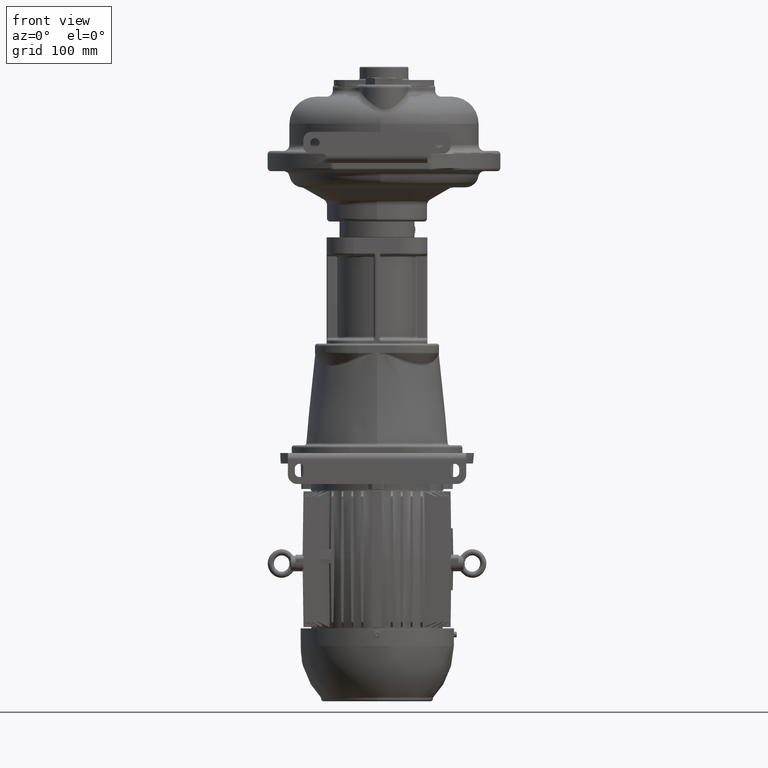
[diagram: clean part render]
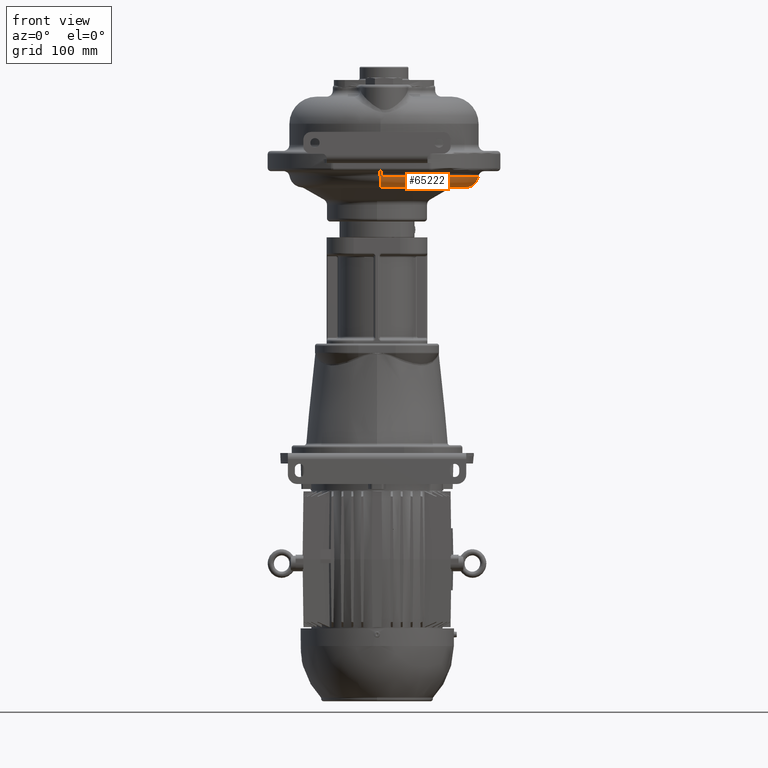
[diagram: same view with one face highlighted and labeled with its STEP entity id]
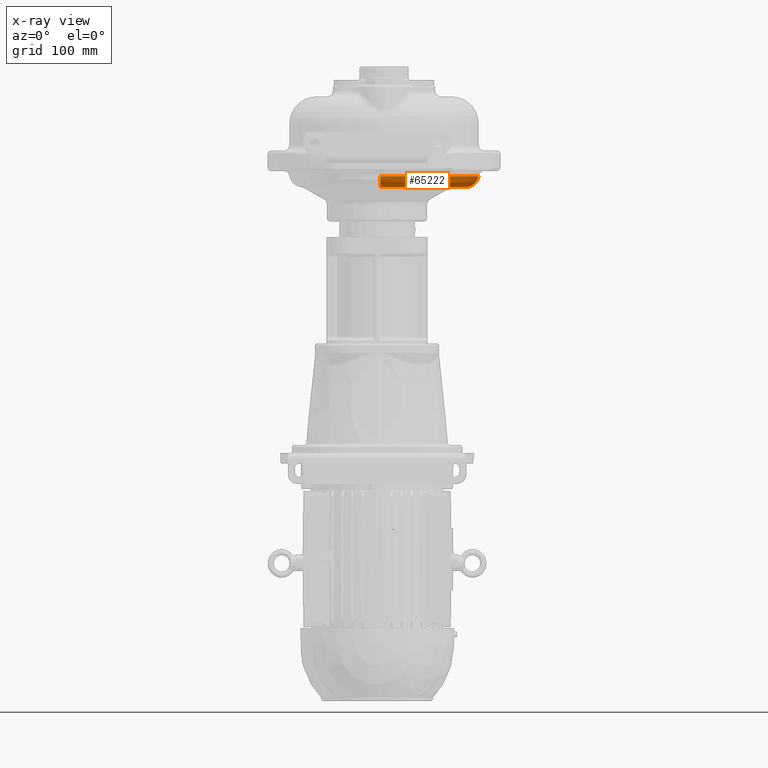
[diagram: x-ray of the same camera — body ghosted, the highlighted face saturated]
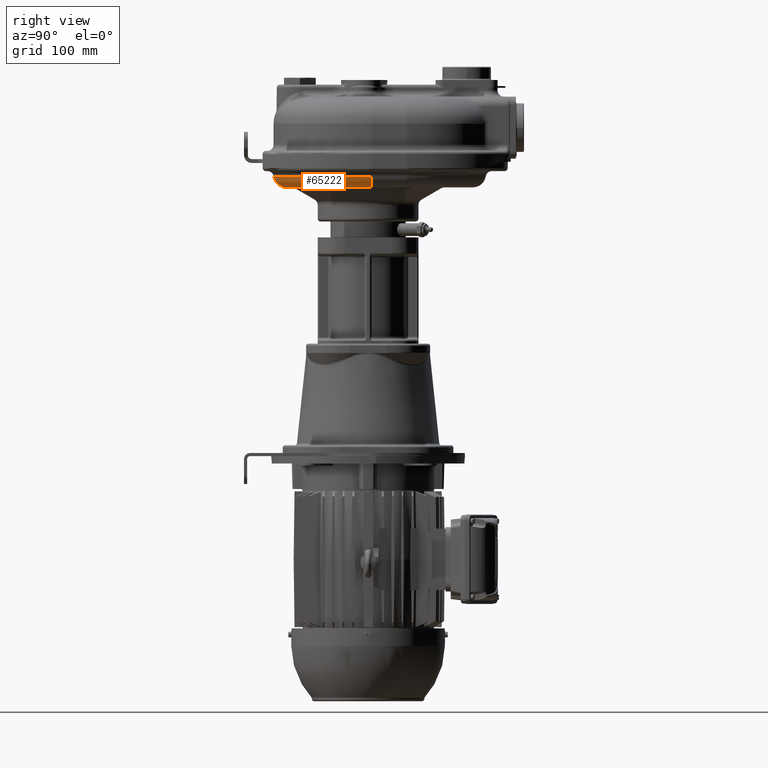
[diagram: same view with one face highlighted and labeled with its STEP entity id]
A machine part, front view. The second image highlights one B-rep face of the part: STEP entity #65222.
The next image is the same camera in x-ray: the body ghosted, the highlighted face saturated — about 0% of this face is hidden behind the body in this view.
A second angle (right view) of the same face is appended — the face is thin or edge-on in the first view.
In plain terms, the highlighted toroidal blend (fillet) surface has major radius 109.5 mm and minor (blend) radius 17 mm.
Its self-contained STEP definition (entity closure, byte-faithful):
#9481=CARTESIAN_POINT('',(4.5E0,4.5E0,-3.8E1));
#9482=DIRECTION('',(0.E0,0.E0,-1.E0));
#9483=DIRECTION('',(1.E0,0.E0,0.E0));
#9484=AXIS2_PLACEMENT_3D('',#9481,#9482,#9483);
#9529=CARTESIAN_POINT('',(4.5E0,-1.05E2,-2.1E1));
#9530=DIRECTION('',(-1.E0,0.E0,0.E0));
#9531=DIRECTION('',(0.E0,0.E0,-1.E0));
#9532=AXIS2_PLACEMENT_3D('',#9529,#9530,#9531);
#9830=CARTESIAN_POINT('',(4.5E0,4.5E0,-2.372E1));
#9831=DIRECTION('',(0.E0,0.E0,1.E0));
#9832=DIRECTION('',(0.E0,-1.E0,0.E0));
#9833=AXIS2_PLACEMENT_3D('',#9830,#9831,#9832);
#9835=CARTESIAN_POINT('',(1.14E2,4.5E0,-2.1E1));
#9836=DIRECTION('',(0.E0,-1.E0,0.E0));
#9837=DIRECTION('',(0.E0,0.E0,-1.E0));
#9838=AXIS2_PLACEMENT_3D('',#9835,#9836,#9837);
#46936=CARTESIAN_POINT('',(1.14E2,4.5E0,-3.8E1));
#46937=VERTEX_POINT('',#46936);
#46938=CARTESIAN_POINT('',(4.500000000001E0,-1.05E2,-3.8E1));
#46939=VERTEX_POINT('',#46938);
#46968=CARTESIAN_POINT('',(4.5E0,-1.217809892438E2,-2.372E1));
#46969=VERTEX_POINT('',#46968);
#46972=CARTESIAN_POINT('',(1.307809892438E2,4.5E0,-2.372E1));
#46973=VERTEX_POINT('',#46972);
#65211=CARTESIAN_POINT('',(4.5E0,4.5E0,-2.1E1));
#65212=DIRECTION('',(0.E0,0.E0,-1.E0));
#65213=DIRECTION('',(9.999999926121E-1,1.215557309259E-4,0.E0));
#65214=AXIS2_PLACEMENT_3D('',#65211,#65212,#65213);
#65215=TOROIDAL_SURFACE('',#65214,1.095E2,1.7E1);
#65216=ORIENTED_EDGE('',*,*,#65201,.T.);
#65217=ORIENTED_EDGE('',*,*,#65177,.F.);
#65218=ORIENTED_EDGE('',*,*,#64561,.T.);
#65219=ORIENTED_EDGE('',*,*,#64591,.T.);
#65220=EDGE_LOOP('',(#65216,#65217,#65218,#65219));
#65221=FACE_OUTER_BOUND('',#65220,.F.);
#65222=ADVANCED_FACE('',(#65221),#65215,.T.);
#9485=CIRCLE('',#9484,1.095E2);
#9533=CIRCLE('',#9532,1.7E1);
#9834=CIRCLE('',#9833,1.262809892438E2);
#9839=CIRCLE('',#9838,1.7E1);
#64561=EDGE_CURVE('',#46937,#46939,#9485,.T.);
#64591=EDGE_CURVE('',#46939,#46969,#9533,.T.);
#65177=EDGE_CURVE('',#46937,#46973,#9839,.T.);
#65201=EDGE_CURVE('',#46969,#46973,#9834,.T.);